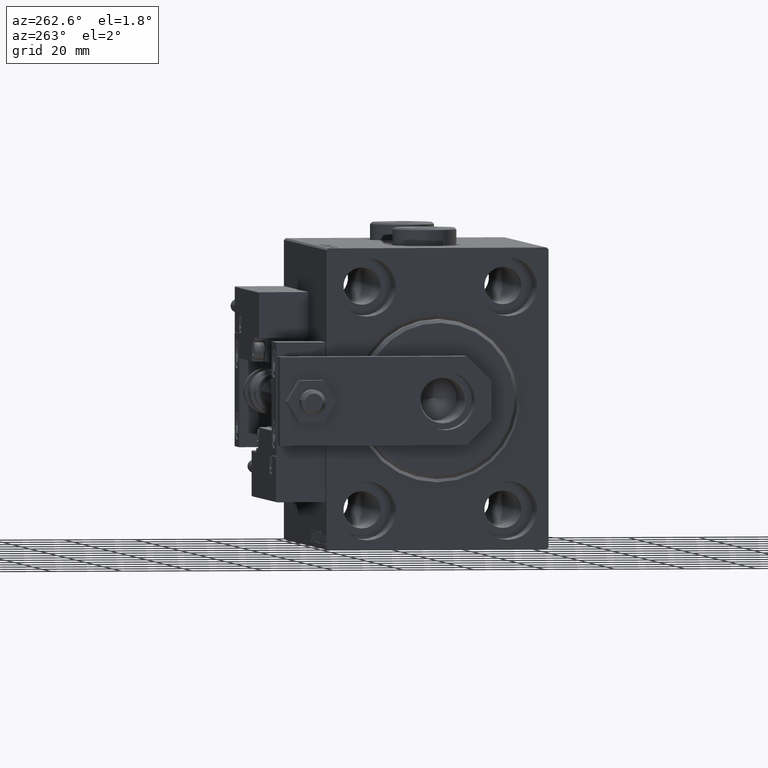
[diagram: clean part render]
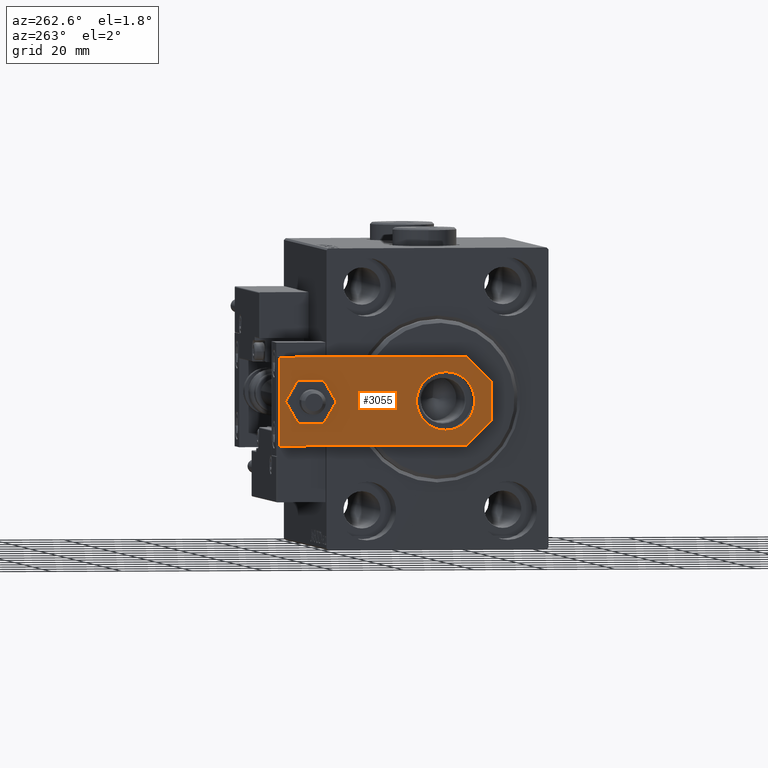
[diagram: same view with one face highlighted and labeled with its STEP entity id]
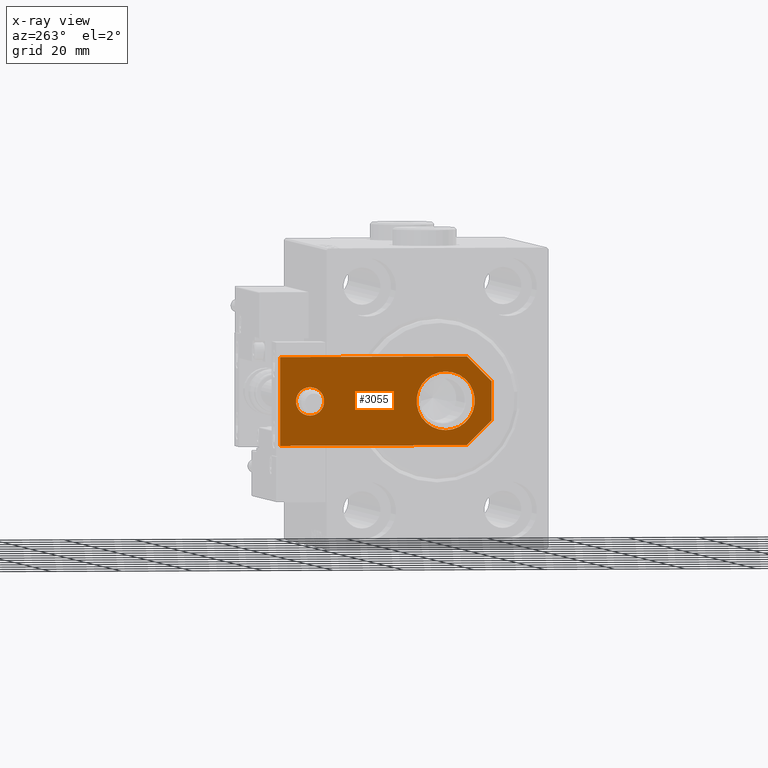
[diagram: x-ray of the same camera — body ghosted, the highlighted face saturated]
A machine part, auxiliary view. The second image highlights one B-rep face of the part: STEP entity #3055.
The next image is the same camera in x-ray: the body ghosted, the highlighted face saturated — about 0% of this face is hidden behind the body in this view.
In plain terms, the highlighted planar face has unit normal (-1, 0, 0).
Its self-contained STEP definition (entity closure, byte-faithful):
#36 = EDGE_CURVE ( 'NONE', #35099, #32806, #25067, .T. ) ;
#37 = EDGE_CURVE ( 'NONE', #29170, #77, #4206, .T. ) ;
#77 = VERTEX_POINT ( 'NONE', #8898 ) ;
#912 = DIRECTION ( 'NONE',  ( 1.000000000000000000, 0.000000000000000000, 0.000000000000000000 ) ) ;
#1093 = DIRECTION ( 'NONE',  ( 1.000000000000000000, 0.000000000000000000, 0.000000000000000000 ) ) ;
#1137 = EDGE_CURVE ( 'NONE', #28440, #44151, #37568, .T. ) ;
#1250 = DIRECTION ( 'NONE',  ( 0.7071067811865465735, -0.7071067811865485719, 0.000000000000000000 ) ) ;
#1752 = CARTESIAN_POINT ( 'NONE',  ( -2.750000000000013767, -2.750000000000005773, 6.000000000000000000 ) ) ;
#1826 = ORIENTED_EDGE ( 'NONE', *, *, #37, .T. ) ;
#2326 = DIRECTION ( 'NONE',  ( 0.000000000000000000, 0.000000000000000000, 1.000000000000000000 ) ) ;
#2511 = EDGE_LOOP ( 'NONE', ( #10377, #6605, #1826, #37361, #46809, #18964 ) ) ;
#2960 = CARTESIAN_POINT ( 'NONE',  ( 12.50000000000000355, 7.000000000000006217, 6.000000000000000000 ) ) ;
#3055 = ADVANCED_FACE ( 'NONE', ( #42149, #37715, #9316 ), #13747, .T. ) ;
#3743 = EDGE_CURVE ( 'NONE', #44151, #28440, #45093, .T. ) ;
#4206 = LINE ( 'NONE', #28701, #32546 ) ;
#4264 = AXIS2_PLACEMENT_3D ( 'NONE', #16739, #19856, #27915 ) ;
#4942 = DIRECTION ( 'NONE',  ( 0.000000000000000000, 1.000000000000000000, 0.000000000000000000 ) ) ;
#5050 = CARTESIAN_POINT ( 'NONE',  ( -4.000000000000000888, 51.50000000000000000, 6.000000000000000000 ) ) ;
#5274 = CARTESIAN_POINT ( 'NONE',  ( 4.000000000000000888, 51.50000000000000000, 6.000000000000000000 ) ) ;
#6256 = CARTESIAN_POINT ( 'NONE',  ( 2.749999999999980016, -2.749999999999988010, 6.000000000000000000 ) ) ;
#6314 = CARTESIAN_POINT ( 'NONE',  ( 8.250000000000000000, 13.00000000000000000, 6.000000000000000000 ) ) ;
#6440 = DIRECTION ( 'NONE',  ( -8.673617379884035472E-17, -1.000000000000000000, 0.000000000000000000 ) ) ;
#6605 = ORIENTED_EDGE ( 'NONE', *, *, #44723, .T. ) ;
#8818 = EDGE_CURVE ( 'NONE', #77, #49293, #33606, .T. ) ;
#8898 = CARTESIAN_POINT ( 'NONE',  ( 5.499999999999976907, 4.814824860968089633E-32, 6.000000000000000000 ) ) ;
#9170 = CARTESIAN_POINT ( 'NONE',  ( 12.50000000000000355, 60.00000000000000000, 6.000000000000000000 ) ) ;
#9316 = FACE_BOUND ( 'NONE', #16480, .T. ) ;
#10377 = ORIENTED_EDGE ( 'NONE', *, *, #22011, .T. ) ;
#12571 = EDGE_CURVE ( 'NONE', #20117, #19164, #14963, .T. ) ;
#13490 = DIRECTION ( 'NONE',  ( -0.000000000000000000, 0.000000000000000000, 1.000000000000000000 ) ) ;
#13747 = PLANE ( 'NONE',  #47531 ) ;
#14269 = CARTESIAN_POINT ( 'NONE',  ( -12.49999999999999822, 60.00000000000000000, 6.000000000000000000 ) ) ;
#14527 = CARTESIAN_POINT ( 'NONE',  ( -12.50000000000000355, 7.000000000000013323, 6.000000000000000000 ) ) ;
#14963 = LINE ( 'NONE', #38166, #45175 ) ;
#16480 = EDGE_LOOP ( 'NONE', ( #42515, #21754 ) ) ;
#16739 = CARTESIAN_POINT ( 'NONE',  ( -9.629649721936179265E-32, 12.99999999999999822, 6.000000000000000000 ) ) ;
#16820 = DIRECTION ( 'NONE',  ( 0.000000000000000000, 0.000000000000000000, 1.000000000000000000 ) ) ;
#18964 = ORIENTED_EDGE ( 'NONE', *, *, #12571, .T. ) ;
#19164 = VERTEX_POINT ( 'NONE', #36334 ) ;
#19204 = DIRECTION ( 'NONE',  ( 1.000000000000000000, 0.000000000000000000, 0.000000000000000000 ) ) ;
#19803 = CIRCLE ( 'NONE', #40635, 8.250000000000000000 ) ;
#19856 = DIRECTION ( 'NONE',  ( 0.000000000000000000, 0.000000000000000000, 1.000000000000000000 ) ) ;
#19905 = VECTOR ( 'NONE', #4942, 1000.000000000000000 ) ;
#20117 = VERTEX_POINT ( 'NONE', #9170 ) ;
#21351 = LINE ( 'NONE', #28639, #19905 ) ;
#21754 = ORIENTED_EDGE ( 'NONE', *, *, #31969, .F. ) ;
#21914 = VERTEX_POINT ( 'NONE', #14527 ) ;
#22011 = EDGE_CURVE ( 'NONE', #19164, #21914, #27243, .T. ) ;
#22262 = VECTOR ( 'NONE', #1250, 1000.000000000000000 ) ;
#24076 = ORIENTED_EDGE ( 'NONE', *, *, #1137, .F. ) ;
#24238 = AXIS2_PLACEMENT_3D ( 'NONE', #34338, #41914, #19204 ) ;
#25067 = CIRCLE ( 'NONE', #4264, 8.250000000000000000 ) ;
#25210 = CARTESIAN_POINT ( 'NONE',  ( 0.000000000000000000, 0.000000000000000000, 6.000000000000000000 ) ) ;
#25970 = DIRECTION ( 'NONE',  ( 1.000000000000000000, 0.000000000000000000, 0.000000000000000000 ) ) ;
#27243 = LINE ( 'NONE', #14269, #50414 ) ;
#27915 = DIRECTION ( 'NONE',  ( 1.000000000000000000, 0.000000000000000000, 0.000000000000000000 ) ) ;
#28440 = VERTEX_POINT ( 'NONE', #5050 ) ;
#28639 = CARTESIAN_POINT ( 'NONE',  ( 12.50000000000000355, 4.814824860968089633E-32, 6.000000000000000000 ) ) ;
#28701 = CARTESIAN_POINT ( 'NONE',  ( -12.50000000000000355, 4.814824860968089633E-32, 6.000000000000000000 ) ) ;
#29170 = VERTEX_POINT ( 'NONE', #39729 ) ;
#30696 = CARTESIAN_POINT ( 'NONE',  ( -1.432611055310774642E-16, 51.50000000000000000, 6.000000000000000000 ) ) ;
#31969 = EDGE_CURVE ( 'NONE', #32806, #35099, #19803, .T. ) ;
#32546 = VECTOR ( 'NONE', #1093, 1000.000000000000000 ) ;
#32806 = VERTEX_POINT ( 'NONE', #6314 ) ;
#33606 = LINE ( 'NONE', #6256, #48957 ) ;
#34338 = CARTESIAN_POINT ( 'NONE',  ( -1.432611055310774642E-16, 51.50000000000000000, 6.000000000000000000 ) ) ;
#34392 = CARTESIAN_POINT ( 'NONE',  ( -8.250000000000000000, 12.99999999999999822, 6.000000000000000000 ) ) ;
#35099 = VERTEX_POINT ( 'NONE', #34392 ) ;
#35927 = AXIS2_PLACEMENT_3D ( 'NONE', #30696, #2326, #50772 ) ;
#36334 = CARTESIAN_POINT ( 'NONE',  ( -12.49999999999999822, 60.00000000000000000, 6.000000000000000000 ) ) ;
#37361 = ORIENTED_EDGE ( 'NONE', *, *, #8818, .T. ) ;
#37568 = CIRCLE ( 'NONE', #35927, 4.000000000000000888 ) ;
#37715 = FACE_OUTER_BOUND ( 'NONE', #2511, .T. ) ;
#38166 = CARTESIAN_POINT ( 'NONE',  ( 12.50000000000000355, 60.00000000000000000, 6.000000000000000000 ) ) ;
#39729 = CARTESIAN_POINT ( 'NONE',  ( -5.500000000000010658, 4.814824860968089633E-32, 6.000000000000000000 ) ) ;
#40635 = AXIS2_PLACEMENT_3D ( 'NONE', #41553, #16820, #912 ) ;
#41553 = CARTESIAN_POINT ( 'NONE',  ( -9.629649721936179265E-32, 12.99999999999999822, 6.000000000000000000 ) ) ;
#41914 = DIRECTION ( 'NONE',  ( 0.000000000000000000, 0.000000000000000000, 1.000000000000000000 ) ) ;
#42149 = FACE_BOUND ( 'NONE', #43691, .T. ) ;
#42515 = ORIENTED_EDGE ( 'NONE', *, *, #36, .F. ) ;
#42923 = ORIENTED_EDGE ( 'NONE', *, *, #3743, .F. ) ;
#43691 = EDGE_LOOP ( 'NONE', ( #24076, #42923 ) ) ;
#44151 = VERTEX_POINT ( 'NONE', #5274 ) ;
#44723 = EDGE_CURVE ( 'NONE', #21914, #29170, #49698, .T. ) ;
#45093 = CIRCLE ( 'NONE', #24238, 4.000000000000000888 ) ;
#45175 = VECTOR ( 'NONE', #45481, 1000.000000000000000 ) ;
#45481 = DIRECTION ( 'NONE',  ( -1.000000000000000000, 0.000000000000000000, 0.000000000000000000 ) ) ;
#46809 = ORIENTED_EDGE ( 'NONE', *, *, #48657, .T. ) ;
#47531 = AXIS2_PLACEMENT_3D ( 'NONE', #25210, #13490, #25970 ) ;
#48657 = EDGE_CURVE ( 'NONE', #49293, #20117, #21351, .T. ) ;
#48957 = VECTOR ( 'NONE', #50043, 999.9999999999998863 ) ;
#49293 = VERTEX_POINT ( 'NONE', #2960 ) ;
#49698 = LINE ( 'NONE', #1752, #22262 ) ;
#50043 = DIRECTION ( 'NONE',  ( 0.7071067811865486830, 0.7071067811865464625, -0.000000000000000000 ) ) ;
#50414 = VECTOR ( 'NONE', #6440, 1000.000000000000000 ) ;
#50772 = DIRECTION ( 'NONE',  ( 1.000000000000000000, 0.000000000000000000, 0.000000000000000000 ) ) ;